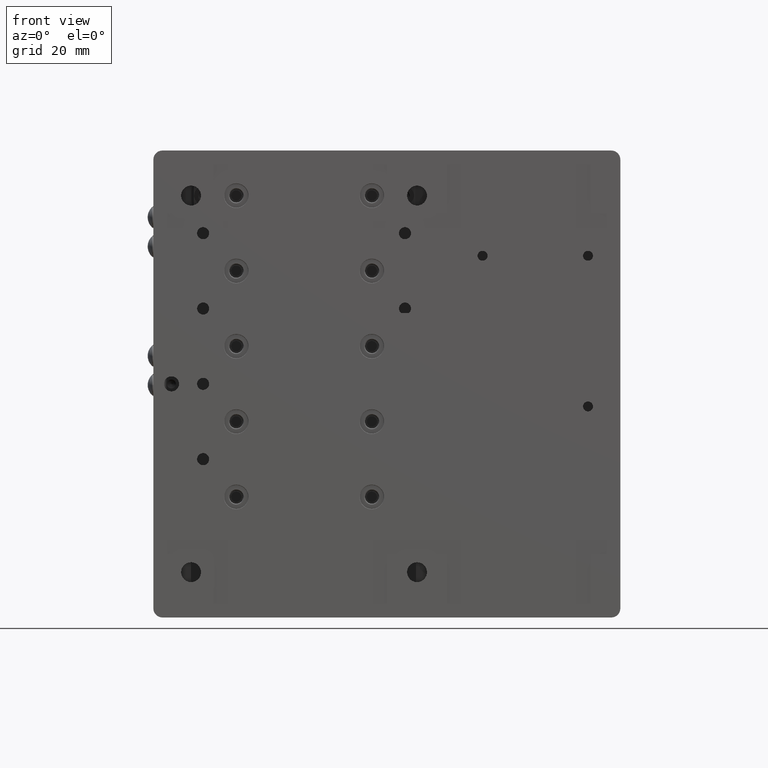
[diagram: clean part render]
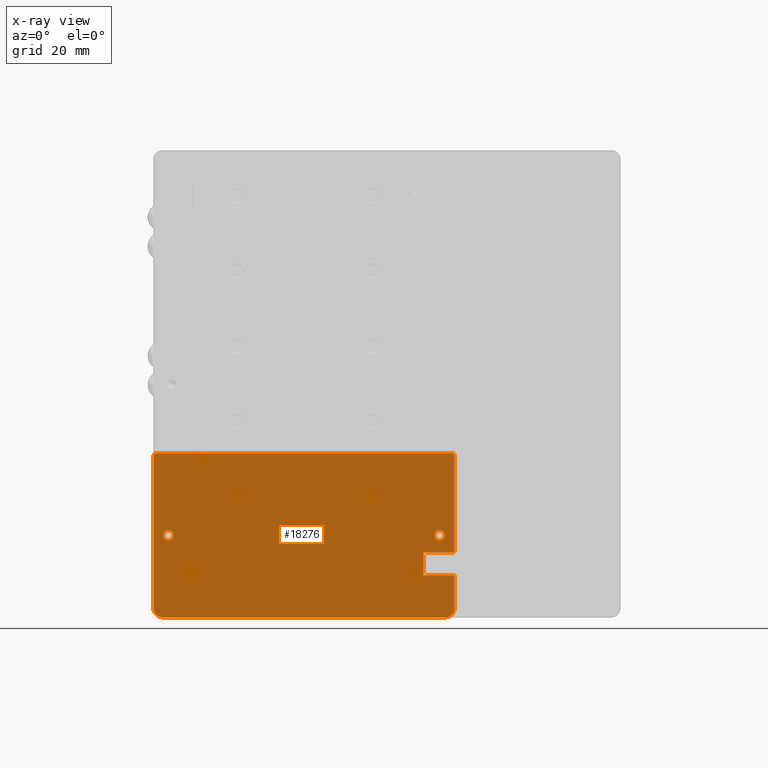
[diagram: x-ray — body ghosted, one internal face saturated and labeled with its STEP entity id]
A machine part, front view, then the same camera in x-ray: the body is ghosted and one INTERNAL B-rep face — a face not visible from any outside direction — is saturated and labeled: STEP entity #18276.
In plain terms, the highlighted planar face has unit normal (0, 1, 0).
Its self-contained STEP definition (entity closure, byte-faithful):
#390 = CARTESIAN_POINT ( 'NONE',  ( -34.99999999999995737, 34.50000000000000000, -90.99999999999998579 ) ) ;
#1093 = FACE_BOUND ( 'NONE', #15477, .T. ) ;
#1445 = LINE ( 'NONE', #40314, #6729 ) ;
#1456 = VERTEX_POINT ( 'NONE', #9947 ) ;
#1536 = LINE ( 'NONE', #18591, #38234 ) ;
#2180 = VERTEX_POINT ( 'NONE', #20984 ) ;
#3722 = LINE ( 'NONE', #42036, #35449 ) ;
#3936 = CARTESIAN_POINT ( 'NONE',  ( 50.00000000000002842, 34.50000000000000000, -99.99999999999995737 ) ) ;
#5948 = DIRECTION ( 'NONE',  ( 0.000000000000000000, -1.000000000000000000, -0.000000000000000000 ) ) ;
#6209 = DIRECTION ( 'NONE',  ( 0.000000000000000000, -0.000000000000000000, 1.000000000000000000 ) ) ;
#6729 = VECTOR ( 'NONE', #6209, 1000.000000000000000 ) ;
#7396 = CARTESIAN_POINT ( 'NONE',  ( -49.99999999999996447, 34.50000000000000000, -51.49999999999997868 ) ) ;
#7622 = CARTESIAN_POINT ( 'NONE',  ( 49.00000000000002842, 34.50000000000000000, -51.49999999999997868 ) ) ;
#7846 = VERTEX_POINT ( 'NONE', #23119 ) ;
#8502 = CARTESIAN_POINT ( 'NONE',  ( 39.67876755007041112, 34.50000000000000000, -90.99999999999998579 ) ) ;
#8610 = DIRECTION ( 'NONE',  ( 0.000000000000000000, 0.000000000000000000, 1.000000000000000000 ) ) ;
#8737 = VERTEX_POINT ( 'NONE', #42022 ) ;
#9000 = CARTESIAN_POINT ( 'NONE',  ( 50.00000000000002842, 34.50000000000000000, -91.50000000000001421 ) ) ;
#9327 = CARTESIAN_POINT ( 'NONE',  ( -46.99999999999995737, 34.50000000000000000, -104.9999999999999716 ) ) ;
#9506 = EDGE_LOOP ( 'NONE', ( #13788 ) ) ;
#9924 = DIRECTION ( 'NONE',  ( 0.000000000000000000, -1.000000000000000000, 0.000000000000000000 ) ) ;
#9947 = CARTESIAN_POINT ( 'NONE',  ( 39.67876755007041112, 34.50000000000000711, -83.49999999999997158 ) ) ;
#11151 = CARTESIAN_POINT ( 'NONE',  ( 39.67876755007041112, 34.50000000000000000, -99.99999999999995737 ) ) ;
#11874 = CARTESIAN_POINT ( 'NONE',  ( 50.00000000000002842, 34.50000000000000000, -82.99999999999997158 ) ) ;
#11987 = EDGE_CURVE ( 'NONE', #35701, #35630, #24463, .T. ) ;
#12595 = CARTESIAN_POINT ( 'NONE',  ( -48.99999999999995737, 34.50000000000000000, -50.49999999999997868 ) ) ;
#12655 = VECTOR ( 'NONE', #42923, 1000.000000000000000 ) ;
#13023 = ORIENTED_EDGE ( 'NONE', *, *, #37525, .F. ) ;
#13271 = EDGE_CURVE ( 'NONE', #35701, #53365, #3722, .T. ) ;
#13562 = CARTESIAN_POINT ( 'NONE',  ( 49.50000000000002842, 34.50000000000000000, -91.50000000000001421 ) ) ;
#13678 = PLANE ( 'NONE',  #23850 ) ;
#13788 = ORIENTED_EDGE ( 'NONE', *, *, #32961, .T. ) ;
#13899 = DIRECTION ( 'NONE',  ( -0.000000000000000000, -1.000000000000000000, -0.000000000000000000 ) ) ;
#14060 = EDGE_CURVE ( 'NONE', #19469, #2180, #39435, .T. ) ;
#14189 = CARTESIAN_POINT ( 'NONE',  ( 49.50000000000002842, 34.50000000000000000, -82.99999999999997158 ) ) ;
#15136 = CARTESIAN_POINT ( 'NONE',  ( -46.99999999999995737, 34.50000000000000000, -101.9999999999999716 ) ) ;
#15477 = EDGE_LOOP ( 'NONE', ( #46771 ) ) ;
#16564 = EDGE_CURVE ( 'NONE', #18257, #2180, #16659, .T. ) ;
#16659 = CIRCLE ( 'NONE', #37207, 1.000000000000000888 ) ;
#16719 = DIRECTION ( 'NONE',  ( 0.000000000000000000, -1.000000000000000000, -0.000000000000000000 ) ) ;
#16805 = VERTEX_POINT ( 'NONE', #9000 ) ;
#17191 = LINE ( 'NONE', #390, #12655 ) ;
#17429 = AXIS2_PLACEMENT_3D ( 'NONE', #13562, #9924, #30612 ) ;
#17780 = EDGE_CURVE ( 'NONE', #18257, #37096, #43689, .T. ) ;
#18142 = DIRECTION ( 'NONE',  ( 0.000000000000000000, 1.000000000000000000, 0.000000000000000000 ) ) ;
#18257 = VERTEX_POINT ( 'NONE', #27652 ) ;
#18276 = ADVANCED_FACE ( 'NONE', ( #1093, #22878, #18711 ), #13678, .T. ) ;
#18480 = EDGE_LOOP ( 'NONE', ( #38617, #13023, #43068, #54528, #24353, #49982, #24321, #53823, #32758, #52378, #38900, #44629, #29294, #24098 ) ) ;
#18542 = EDGE_CURVE ( 'NONE', #8737, #8737, #28068, .T. ) ;
#18591 = CARTESIAN_POINT ( 'NONE',  ( -34.99999999999995737, 34.50000000000000000, -83.49999999999997158 ) ) ;
#18711 = FACE_OUTER_BOUND ( 'NONE', #18480, .T. ) ;
#19024 = EDGE_CURVE ( 'NONE', #35630, #49287, #1445, .T. ) ;
#19469 = VERTEX_POINT ( 'NONE', #12595 ) ;
#20412 = EDGE_CURVE ( 'NONE', #16805, #36721, #44235, .T. ) ;
#20701 = DIRECTION ( 'NONE',  ( -0.000000000000000000, 0.000000000000000000, -1.000000000000000000 ) ) ;
#20844 = AXIS2_PLACEMENT_3D ( 'NONE', #15136, #37474, #41132 ) ;
#20984 = CARTESIAN_POINT ( 'NONE',  ( 49.00000000000002842, 34.50000000000000000, -50.49999999999997868 ) ) ;
#21438 = CARTESIAN_POINT ( 'NONE',  ( 45.00000000000004263, 34.49999999996098410, -77.74999999999997158 ) ) ;
#22119 = DIRECTION ( 'NONE',  ( -0.000000000000000000, 0.000000000000000000, -1.000000000000000000 ) ) ;
#22325 = CARTESIAN_POINT ( 'NONE',  ( -34.99999999999995737, 34.50000000000000000, -99.99999999999995737 ) ) ;
#22700 = AXIS2_PLACEMENT_3D ( 'NONE', #21438, #16719, #8610 ) ;
#22878 = FACE_BOUND ( 'NONE', #9506, .T. ) ;
#23119 = CARTESIAN_POINT ( 'NONE',  ( 50.00000000000002842, 34.50000000000000000, -101.9999999999999716 ) ) ;
#23850 = AXIS2_PLACEMENT_3D ( 'NONE', #22325, #18142, #48644 ) ;
#24098 = ORIENTED_EDGE ( 'NONE', *, *, #11987, .T. ) ;
#24321 = ORIENTED_EDGE ( 'NONE', *, *, #25474, .T. ) ;
#24353 = ORIENTED_EDGE ( 'NONE', *, *, #17780, .T. ) ;
#24463 = CIRCLE ( 'NONE', #20844, 3.000000000000002665 ) ;
#25172 = CIRCLE ( 'NONE', #42192, 1.599999999996271072 ) ;
#25474 = EDGE_CURVE ( 'NONE', #29830, #1456, #1536, .T. ) ;
#27387 = DIRECTION ( 'NONE',  ( 0.000000000000000000, 0.000000000000000000, 1.000000000000000000 ) ) ;
#27652 = CARTESIAN_POINT ( 'NONE',  ( 50.00000000000002842, 34.50000000000000000, -51.49999999999997868 ) ) ;
#28068 = CIRCLE ( 'NONE', #22700, 1.599999999939427653 ) ;
#29294 = ORIENTED_EDGE ( 'NONE', *, *, #13271, .F. ) ;
#29412 = DIRECTION ( 'NONE',  ( 0.000000000000000000, 0.000000000000000000, 1.000000000000000000 ) ) ;
#29737 = CIRCLE ( 'NONE', #44957, 3.000000000000002665 ) ;
#29800 = CARTESIAN_POINT ( 'NONE',  ( 49.50000000000002842, 34.50000000000000000, -90.99999999999998579 ) ) ;
#29830 = VERTEX_POINT ( 'NONE', #47928 ) ;
#29906 = AXIS2_PLACEMENT_3D ( 'NONE', #51226, #42543, #29412 ) ;
#30612 = DIRECTION ( 'NONE',  ( 0.000000000000000000, 0.000000000000000000, -1.000000000000000000 ) ) ;
#30678 = DIRECTION ( 'NONE',  ( 0.000000000000000000, 0.000000000000000000, 1.000000000000000000 ) ) ;
#30823 = CIRCLE ( 'NONE', #29906, 1.000000000000000888 ) ;
#30911 = VECTOR ( 'NONE', #22119, 1000.000000000000000 ) ;
#31268 = VECTOR ( 'NONE', #20701, 1000.000000000000000 ) ;
#31588 = DIRECTION ( 'NONE',  ( -0.000000000000000000, -1.000000000000000000, -0.000000000000000000 ) ) ;
#31952 = VECTOR ( 'NONE', #34404, 1000.000000000000000 ) ;
#32005 = VECTOR ( 'NONE', #41074, 1000.000000000000000 ) ;
#32605 = EDGE_CURVE ( 'NONE', #51828, #36721, #17191, .T. ) ;
#32758 = ORIENTED_EDGE ( 'NONE', *, *, #32605, .T. ) ;
#32961 = EDGE_CURVE ( 'NONE', #39953, #39953, #25172, .T. ) ;
#33909 = CIRCLE ( 'NONE', #35703, 0.5000000000000004441 ) ;
#34404 = DIRECTION ( 'NONE',  ( 1.000000000000000000, 0.000000000000000000, -0.000000000000000000 ) ) ;
#35449 = VECTOR ( 'NONE', #39134, 1000.000000000000000 ) ;
#35630 = VERTEX_POINT ( 'NONE', #43449 ) ;
#35648 = DIRECTION ( 'NONE',  ( -1.000000000000000000, -0.000000000000000000, 0.000000000000000000 ) ) ;
#35701 = VERTEX_POINT ( 'NONE', #9327 ) ;
#35703 = AXIS2_PLACEMENT_3D ( 'NONE', #14189, #13899, #30678 ) ;
#35754 = CARTESIAN_POINT ( 'NONE',  ( -44.99999999999995737, 34.49999999996098410, -76.15000000000370051 ) ) ;
#36721 = VERTEX_POINT ( 'NONE', #29800 ) ;
#37096 = VERTEX_POINT ( 'NONE', #11874 ) ;
#37207 = AXIS2_PLACEMENT_3D ( 'NONE', #7622, #45932, #50169 ) ;
#37263 = CARTESIAN_POINT ( 'NONE',  ( 47.00000000000001421, 34.50000000000000000, -104.9999999999999716 ) ) ;
#37474 = DIRECTION ( 'NONE',  ( -0.000000000000000000, 1.000000000000000000, -0.000000000000000000 ) ) ;
#37525 = EDGE_CURVE ( 'NONE', #19469, #49287, #30823, .T. ) ;
#37763 = LINE ( 'NONE', #3936, #31268 ) ;
#38234 = VECTOR ( 'NONE', #35648, 1000.000000000000000 ) ;
#38617 = ORIENTED_EDGE ( 'NONE', *, *, #19024, .T. ) ;
#38900 = ORIENTED_EDGE ( 'NONE', *, *, #44703, .T. ) ;
#39134 = DIRECTION ( 'NONE',  ( 1.000000000000000000, -0.000000000000000000, 0.000000000000000000 ) ) ;
#39435 = LINE ( 'NONE', #46732, #31952 ) ;
#39953 = VERTEX_POINT ( 'NONE', #35754 ) ;
#40314 = CARTESIAN_POINT ( 'NONE',  ( -49.99999999999996447, 34.50000000000000000, -99.99999999999995737 ) ) ;
#41074 = DIRECTION ( 'NONE',  ( -0.000000000000000000, 0.000000000000000000, -1.000000000000000000 ) ) ;
#41132 = DIRECTION ( 'NONE',  ( 0.000000000000000000, 0.000000000000000000, -1.000000000000000000 ) ) ;
#41290 = CARTESIAN_POINT ( 'NONE',  ( 47.00000000000002842, 34.50000000000000000, -101.9999999999999716 ) ) ;
#41650 = EDGE_CURVE ( 'NONE', #1456, #51828, #52856, .T. ) ;
#42022 = CARTESIAN_POINT ( 'NONE',  ( 45.00000000000004263, 34.49999999996098410, -76.15000000006054393 ) ) ;
#42036 = CARTESIAN_POINT ( 'NONE',  ( -49.99999999999996447, 34.50000000000000000, -104.9999999999999716 ) ) ;
#42192 = AXIS2_PLACEMENT_3D ( 'NONE', #44255, #5948, #49043 ) ;
#42543 = DIRECTION ( 'NONE',  ( -0.000000000000000000, -1.000000000000000000, -0.000000000000000000 ) ) ;
#42923 = DIRECTION ( 'NONE',  ( 1.000000000000000000, 0.000000000000000000, -0.000000000000000000 ) ) ;
#43068 = ORIENTED_EDGE ( 'NONE', *, *, #14060, .T. ) ;
#43179 = EDGE_CURVE ( 'NONE', #29830, #37096, #33909, .T. ) ;
#43449 = CARTESIAN_POINT ( 'NONE',  ( -49.99999999999996447, 34.50000000000000000, -101.9999999999999716 ) ) ;
#43689 = LINE ( 'NONE', #51540, #30911 ) ;
#44235 = CIRCLE ( 'NONE', #17429, 0.5000000000000004441 ) ;
#44255 = CARTESIAN_POINT ( 'NONE',  ( -44.99999999999995737, 34.49999999996098410, -77.74999999999997158 ) ) ;
#44629 = ORIENTED_EDGE ( 'NONE', *, *, #48668, .F. ) ;
#44703 = EDGE_CURVE ( 'NONE', #16805, #7846, #37763, .T. ) ;
#44957 = AXIS2_PLACEMENT_3D ( 'NONE', #41290, #31588, #27387 ) ;
#45932 = DIRECTION ( 'NONE',  ( -0.000000000000000000, -1.000000000000000000, -0.000000000000000000 ) ) ;
#46732 = CARTESIAN_POINT ( 'NONE',  ( -34.99999999999995737, 34.50000000000000000, -50.49999999999997868 ) ) ;
#46771 = ORIENTED_EDGE ( 'NONE', *, *, #18542, .T. ) ;
#47928 = CARTESIAN_POINT ( 'NONE',  ( 49.50000000000001421, 34.50000000000000000, -83.49999999999997158 ) ) ;
#48644 = DIRECTION ( 'NONE',  ( 0.000000000000000000, -0.000000000000000000, 1.000000000000000000 ) ) ;
#48668 = EDGE_CURVE ( 'NONE', #53365, #7846, #29737, .T. ) ;
#49043 = DIRECTION ( 'NONE',  ( 0.000000000000000000, 0.000000000000000000, 1.000000000000000000 ) ) ;
#49287 = VERTEX_POINT ( 'NONE', #7396 ) ;
#49982 = ORIENTED_EDGE ( 'NONE', *, *, #43179, .F. ) ;
#50169 = DIRECTION ( 'NONE',  ( 0.000000000000000000, 0.000000000000000000, 1.000000000000000000 ) ) ;
#51226 = CARTESIAN_POINT ( 'NONE',  ( -48.99999999999995737, 34.50000000000000000, -51.49999999999997868 ) ) ;
#51540 = CARTESIAN_POINT ( 'NONE',  ( 50.00000000000002842, 34.50000000000000000, -99.99999999999995737 ) ) ;
#51828 = VERTEX_POINT ( 'NONE', #8502 ) ;
#52378 = ORIENTED_EDGE ( 'NONE', *, *, #20412, .F. ) ;
#52856 = LINE ( 'NONE', #11151, #32005 ) ;
#53365 = VERTEX_POINT ( 'NONE', #37263 ) ;
#53823 = ORIENTED_EDGE ( 'NONE', *, *, #41650, .T. ) ;
#54528 = ORIENTED_EDGE ( 'NONE', *, *, #16564, .F. ) ;